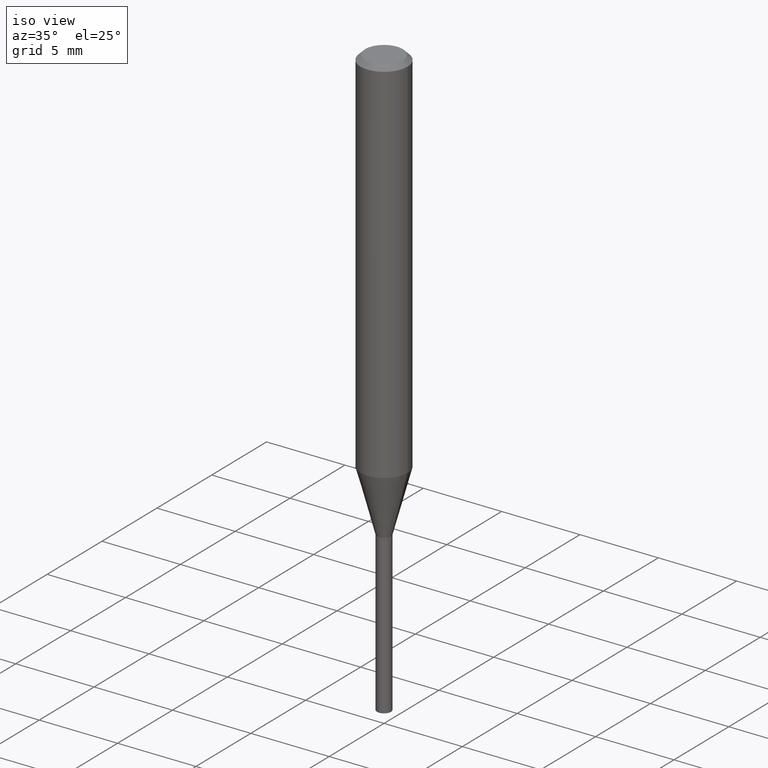
[diagram: clean part render]
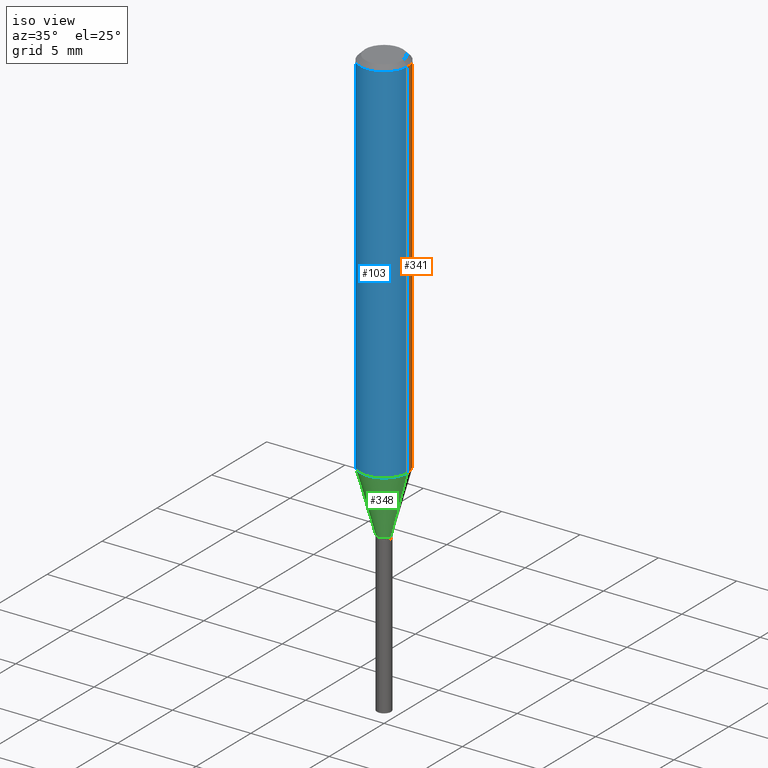
[diagram: same view with three faces highlighted in distinct colors, each labeled with its STEP entity id]
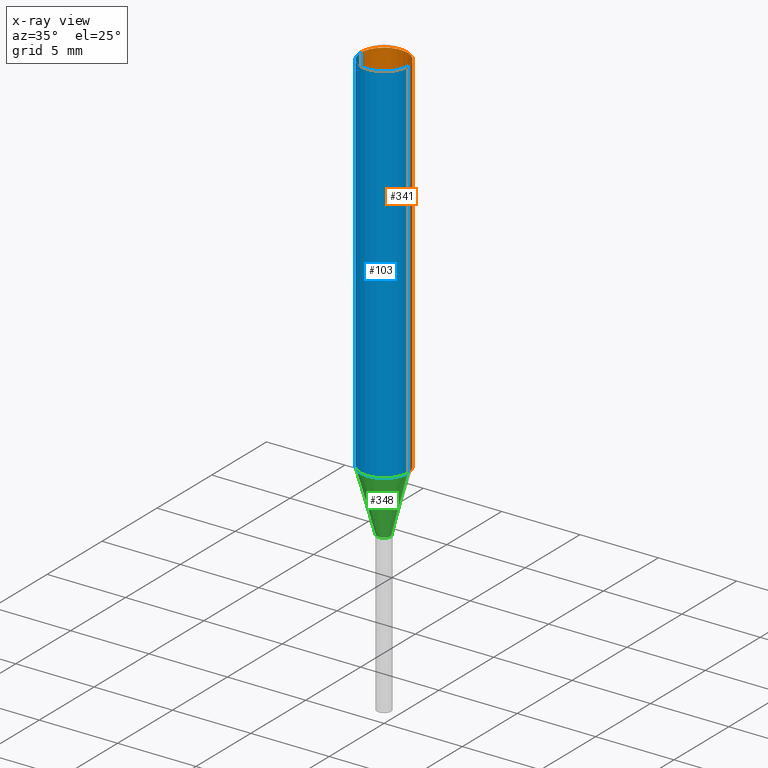
[diagram: x-ray of the same camera — body ghosted, the three highlighted faces saturated]
A machine part, iso view with three faces highlighted in distinct colors.
The next image is the same camera in x-ray (body ghosted, the three faces saturated) — at least one of them is partly hidden behind the body in this view.
Their STEP definitions:

[orange] entity #341 — the highlighted cylindrical surface (edge-blend (fillet) strip) has radius 1.4999 mm, axis along (-0, 0, 1).
#12 = VECTOR ( 'NONE', #136, 39.37007874015748143 ) ;
#29 = LINE ( 'NONE', #59, #12 ) ;
#59 = CARTESIAN_POINT ( 'NONE',  ( 0.05905000000000005383, -4.123439461173744271E-16, 2.879382386107502672E-30 ) ) ;
#61 = VERTEX_POINT ( 'NONE', #381 ) ;
#102 = CARTESIAN_POINT ( 'NONE',  ( -0.05904999999999999832, -1.231796185012244418E-15, -0.01181000000000006871 ) ) ;
#104 = ORIENTED_EDGE ( 'NONE', *, *, #120, .T. ) ;
#112 = EDGE_LOOP ( 'NONE', ( #104, #140, #223, #299 ) ) ;
#120 = EDGE_CURVE ( 'NONE', #61, #408, #393, .T. ) ;
#136 = DIRECTION ( 'NONE',  ( -2.445468806185136877E-29, 3.491481338843145188E-15, 1.000000000000000000 ) ) ;
#140 = ORIENTED_EDGE ( 'NONE', *, *, #412, .T. ) ;
#145 = AXIS2_PLACEMENT_3D ( 'NONE', #196, #229, #343 ) ;
#185 = EDGE_CURVE ( 'NONE', #61, #436, #29, .T. ) ;
#196 = CARTESIAN_POINT ( 'NONE',  ( 2.284393818935379026E-29, -3.261508946345431277E-15, -0.9341332889455130628 ) ) ;
#200 = AXIS2_PLACEMENT_3D ( 'NONE', #209, #207, #390 ) ;
#207 = DIRECTION ( 'NONE',  ( -2.445468806185136597E-29, 3.491481338843145583E-15, 1.000000000000000000 ) ) ;
#209 = CARTESIAN_POINT ( 'NONE',  ( 2.888098660104663328E-31, -4.123439461173779030E-17, -0.01181000000000006871 ) ) ;
#214 = CARTESIAN_POINT ( 'NONE',  ( -0.05905000000000010241, -2.841933460879091389E-15, -0.9341332889455130628 ) ) ;
#222 = CARTESIAN_POINT ( 'NONE',  ( 0.05904999999999999832, -4.535783407291118600E-16, -0.01181000000000006871 ) ) ;
#223 = ORIENTED_EDGE ( 'NONE', *, *, #292, .F. ) ;
#229 = DIRECTION ( 'NONE',  ( -2.445468806185136597E-29, 3.491481338843145583E-15, 1.000000000000000000 ) ) ;
#243 = CIRCLE ( 'NONE', #200, 0.05904999999999999832 ) ;
#252 = LINE ( 'NONE', #295, #311 ) ;
#254 = AXIS2_PLACEMENT_3D ( 'NONE', #298, #486, #481 ) ;
#292 = EDGE_CURVE ( 'NONE', #436, #484, #243, .T. ) ;
#295 = CARTESIAN_POINT ( 'NONE',  ( -0.05905000000000005383, 4.195754854663395423E-16, -2.904631170795524694E-30 ) ) ;
#298 = CARTESIAN_POINT ( 'NONE',  ( 0.000000000000000000, 0.000000000000000000, 0.000000000000000000 ) ) ;
#299 = ORIENTED_EDGE ( 'NONE', *, *, #185, .F. ) ;
#311 = VECTOR ( 'NONE', #442, 39.37007874015748143 ) ;
#341 = ADVANCED_FACE ( 'NONE', ( #479 ), #371, .T. ) ;
#343 = DIRECTION ( 'NONE',  ( 1.000000000000000000, -6.982962677686267499E-15, 0.000000000000000000 ) ) ;
#371 = CYLINDRICAL_SURFACE ( 'NONE', #254, 0.05905000000000005383 ) ;
#381 = CARTESIAN_POINT ( 'NONE',  ( 0.05905000000000010241, -3.673852892462806197E-15, -0.9341332889455130628 ) ) ;
#390 = DIRECTION ( 'NONE',  ( 1.000000000000000000, -6.982962677686266711E-15, 0.000000000000000000 ) ) ;
#393 = CIRCLE ( 'NONE', #145, 0.05905000000000010935 ) ;
#408 = VERTEX_POINT ( 'NONE', #214 ) ;
#412 = EDGE_CURVE ( 'NONE', #408, #484, #252, .T. ) ;
#436 = VERTEX_POINT ( 'NONE', #222 ) ;
#442 = DIRECTION ( 'NONE',  ( -2.445468806185136877E-29, 3.491481338843145188E-15, 1.000000000000000000 ) ) ;
#479 = FACE_OUTER_BOUND ( 'NONE', #112, .T. ) ;
#481 = DIRECTION ( 'NONE',  ( 1.000000000000000000, -6.982962677686266711E-15, 4.876176775795935793E-29 ) ) ;
#484 = VERTEX_POINT ( 'NONE', #102 ) ;
#486 = DIRECTION ( 'NONE',  ( -2.445468806185136597E-29, 3.491481338843145583E-15, 1.000000000000000000 ) ) ;

[blue] entity #103 — the highlighted cylindrical surface (edge-blend (fillet) strip) has radius 1.4999 mm, axis along (-0, 0, 1).
#1 = ORIENTED_EDGE ( 'NONE', *, *, #185, .T. ) ;
#3 = EDGE_CURVE ( 'NONE', #408, #61, #332, .T. ) ;
#12 = VECTOR ( 'NONE', #136, 39.37007874015748143 ) ;
#29 = LINE ( 'NONE', #59, #12 ) ;
#51 = DIRECTION ( 'NONE',  ( -2.445468806185136597E-29, 3.491481338843145583E-15, 1.000000000000000000 ) ) ;
#59 = CARTESIAN_POINT ( 'NONE',  ( 0.05905000000000005383, -4.123439461173744271E-16, 2.879382386107502672E-30 ) ) ;
#61 = VERTEX_POINT ( 'NONE', #381 ) ;
#83 = CARTESIAN_POINT ( 'NONE',  ( 2.888098660104663328E-31, -4.123439461173779030E-17, -0.01181000000000006871 ) ) ;
#99 = ORIENTED_EDGE ( 'NONE', *, *, #152, .F. ) ;
#102 = CARTESIAN_POINT ( 'NONE',  ( -0.05904999999999999832, -1.231796185012244418E-15, -0.01181000000000006871 ) ) ;
#103 = ADVANCED_FACE ( 'NONE', ( #199 ), #426, .T. ) ;
#111 = AXIS2_PLACEMENT_3D ( 'NONE', #83, #51, #312 ) ;
#136 = DIRECTION ( 'NONE',  ( -2.445468806185136877E-29, 3.491481338843145188E-15, 1.000000000000000000 ) ) ;
#144 = ORIENTED_EDGE ( 'NONE', *, *, #412, .F. ) ;
#148 = DIRECTION ( 'NONE',  ( -2.445468806185136597E-29, 3.491481338843145583E-15, 1.000000000000000000 ) ) ;
#152 = EDGE_CURVE ( 'NONE', #484, #436, #183, .T. ) ;
#183 = CIRCLE ( 'NONE', #111, 0.05904999999999999832 ) ;
#185 = EDGE_CURVE ( 'NONE', #61, #436, #29, .T. ) ;
#192 = CARTESIAN_POINT ( 'NONE',  ( 0.000000000000000000, 0.000000000000000000, 0.000000000000000000 ) ) ;
#199 = FACE_OUTER_BOUND ( 'NONE', #473, .T. ) ;
#214 = CARTESIAN_POINT ( 'NONE',  ( -0.05905000000000010241, -2.841933460879091389E-15, -0.9341332889455130628 ) ) ;
#222 = CARTESIAN_POINT ( 'NONE',  ( 0.05904999999999999832, -4.535783407291118600E-16, -0.01181000000000006871 ) ) ;
#233 = DIRECTION ( 'NONE',  ( -2.445468806185136597E-29, 3.491481338843145583E-15, 1.000000000000000000 ) ) ;
#252 = LINE ( 'NONE', #295, #311 ) ;
#260 = CARTESIAN_POINT ( 'NONE',  ( 2.284393818935379026E-29, -3.261508946345431277E-15, -0.9341332889455130628 ) ) ;
#295 = CARTESIAN_POINT ( 'NONE',  ( -0.05905000000000005383, 4.195754854663395423E-16, -2.904631170795524694E-30 ) ) ;
#311 = VECTOR ( 'NONE', #442, 39.37007874015748143 ) ;
#312 = DIRECTION ( 'NONE',  ( 1.000000000000000000, -6.982962677686266711E-15, 0.000000000000000000 ) ) ;
#325 = AXIS2_PLACEMENT_3D ( 'NONE', #192, #233, #467 ) ;
#332 = CIRCLE ( 'NONE', #474, 0.05905000000000010935 ) ;
#370 = DIRECTION ( 'NONE',  ( 1.000000000000000000, -6.982962677686267499E-15, 0.000000000000000000 ) ) ;
#381 = CARTESIAN_POINT ( 'NONE',  ( 0.05905000000000010241, -3.673852892462806197E-15, -0.9341332889455130628 ) ) ;
#398 = ORIENTED_EDGE ( 'NONE', *, *, #3, .T. ) ;
#408 = VERTEX_POINT ( 'NONE', #214 ) ;
#412 = EDGE_CURVE ( 'NONE', #408, #484, #252, .T. ) ;
#426 = CYLINDRICAL_SURFACE ( 'NONE', #325, 0.05905000000000005383 ) ;
#436 = VERTEX_POINT ( 'NONE', #222 ) ;
#442 = DIRECTION ( 'NONE',  ( -2.445468806185136877E-29, 3.491481338843145188E-15, 1.000000000000000000 ) ) ;
#467 = DIRECTION ( 'NONE',  ( 1.000000000000000000, -6.982962677686266711E-15, 4.876176775795935793E-29 ) ) ;
#473 = EDGE_LOOP ( 'NONE', ( #144, #398, #1, #99 ) ) ;
#474 = AXIS2_PLACEMENT_3D ( 'NONE', #260, #148, #370 ) ;
#484 = VERTEX_POINT ( 'NONE', #102 ) ;

[green] entity #348 — the highlighted conical surface has half-angle 15 deg.
#3 = EDGE_CURVE ( 'NONE', #408, #61, #332, .T. ) ;
#5 = CARTESIAN_POINT ( 'NONE',  ( -0.01750000000000000167, -3.686956050723160015E-15, -1.089199999999999946 ) ) ;
#20 = VECTOR ( 'NONE', #180, 39.37007874015747433 ) ;
#28 = AXIS2_PLACEMENT_3D ( 'NONE', #425, #202, #119 ) ;
#41 = CARTESIAN_POINT ( 'NONE',  ( 2.663604623696850789E-29, -3.802921474267954047E-15, -1.089199999999999946 ) ) ;
#42 = ORIENTED_EDGE ( 'NONE', *, *, #321, .T. ) ;
#61 = VERTEX_POINT ( 'NONE', #381 ) ;
#68 = VERTEX_POINT ( 'NONE', #5 ) ;
#97 = EDGE_CURVE ( 'NONE', #68, #327, #429, .T. ) ;
#100 = DIRECTION ( 'NONE',  ( 1.000000000000000000, -6.982962677686276966E-15, 0.000000000000000000 ) ) ;
#119 = DIRECTION ( 'NONE',  ( 1.000000000000000000, -6.982962677686276966E-15, 0.000000000000000000 ) ) ;
#146 = LINE ( 'NONE', #189, #20 ) ;
#148 = DIRECTION ( 'NONE',  ( -2.445468806185136597E-29, 3.491481338843145583E-15, 1.000000000000000000 ) ) ;
#156 = ORIENTED_EDGE ( 'NONE', *, *, #364, .F. ) ;
#173 = LINE ( 'NONE', #323, #237 ) ;
#180 = DIRECTION ( 'NONE',  ( -0.2588190451025213501, 5.211531920934551042E-15, 0.9659258262890682012 ) ) ;
#189 = CARTESIAN_POINT ( 'NONE',  ( -0.01750000000000000167, -3.678576495509936798E-15, -1.089199999999999946 ) ) ;
#202 = DIRECTION ( 'NONE',  ( -2.445468806185136597E-29, 3.491481338843145583E-15, 1.000000000000000000 ) ) ;
#214 = CARTESIAN_POINT ( 'NONE',  ( -0.05905000000000010241, -2.841933460879091389E-15, -0.9341332889455130628 ) ) ;
#216 = FACE_OUTER_BOUND ( 'NONE', #264, .T. ) ;
#228 = AXIS2_PLACEMENT_3D ( 'NONE', #41, #438, #100 ) ;
#237 = VECTOR ( 'NONE', #250, 39.37007874015747433 ) ;
#250 = DIRECTION ( 'NONE',  ( 0.2588190451025213501, 1.565188264969621968E-15, 0.9659258262890682012 ) ) ;
#260 = CARTESIAN_POINT ( 'NONE',  ( 2.284393818935379026E-29, -3.261508946345431277E-15, -0.9341332889455130628 ) ) ;
#264 = EDGE_LOOP ( 'NONE', ( #156, #471, #42, #413 ) ) ;
#321 = EDGE_CURVE ( 'NONE', #327, #61, #173, .T. ) ;
#323 = CARTESIAN_POINT ( 'NONE',  ( 0.01750000000000000167, -3.925123321127464030E-15, -1.089199999999999946 ) ) ;
#327 = VERTEX_POINT ( 'NONE', #399 ) ;
#332 = CIRCLE ( 'NONE', #474, 0.05905000000000010935 ) ;
#348 = ADVANCED_FACE ( 'NONE', ( #216 ), #441, .T. ) ;
#364 = EDGE_CURVE ( 'NONE', #68, #408, #146, .T. ) ;
#370 = DIRECTION ( 'NONE',  ( 1.000000000000000000, -6.982962677686267499E-15, 0.000000000000000000 ) ) ;
#381 = CARTESIAN_POINT ( 'NONE',  ( 0.05905000000000010241, -3.673852892462806197E-15, -0.9341332889455130628 ) ) ;
#399 = CARTESIAN_POINT ( 'NONE',  ( 0.01750000000000000167, -3.925123321127464030E-15, -1.089199999999999946 ) ) ;
#408 = VERTEX_POINT ( 'NONE', #214 ) ;
#413 = ORIENTED_EDGE ( 'NONE', *, *, #3, .F. ) ;
#425 = CARTESIAN_POINT ( 'NONE',  ( 2.663604623696850789E-29, -3.802921474267954047E-15, -1.089199999999999946 ) ) ;
#429 = CIRCLE ( 'NONE', #28, 0.01750000000000000167 ) ;
#438 = DIRECTION ( 'NONE',  ( -2.445468806185136597E-29, 3.491481338843145583E-15, 1.000000000000000000 ) ) ;
#441 = CONICAL_SURFACE ( 'NONE', #228, 0.01750000000000000167, 0.2617993877991500740 ) ;
#471 = ORIENTED_EDGE ( 'NONE', *, *, #97, .T. ) ;
#474 = AXIS2_PLACEMENT_3D ( 'NONE', #260, #148, #370 ) ;